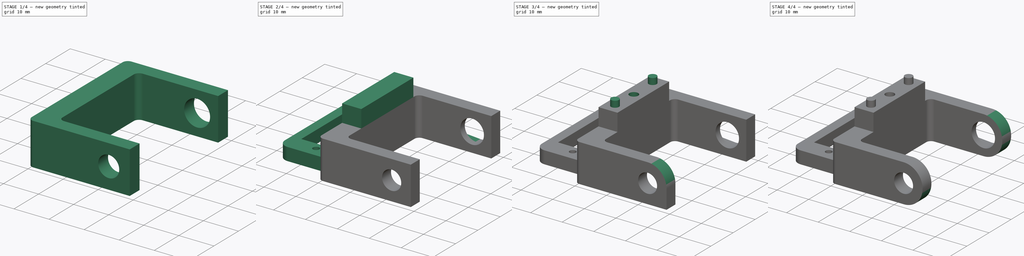
[diagram: build sequence overview — one tinted view per stage of 4, left to right]
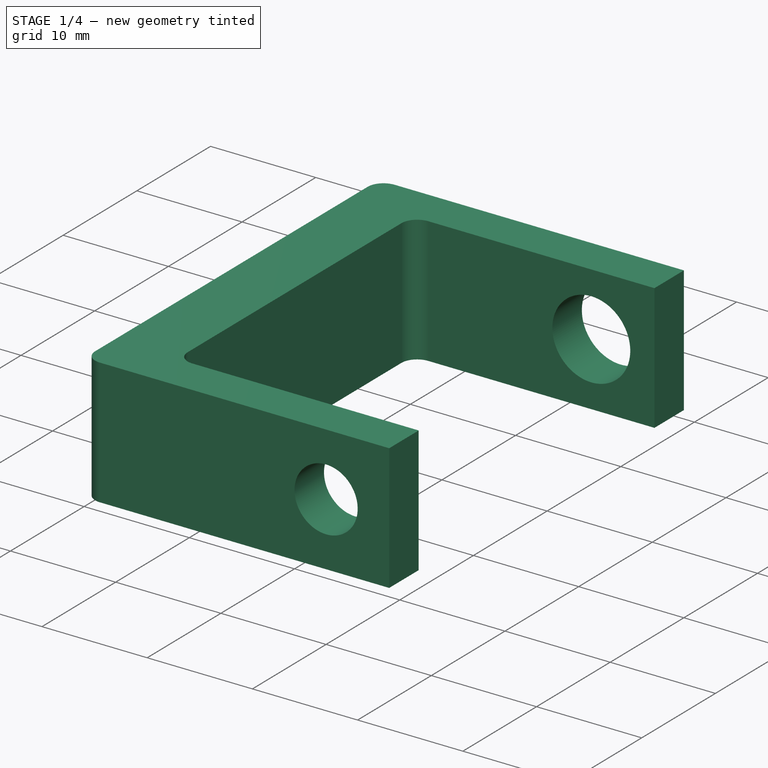
[diagram: stage 1 of 4 — iso view after this stage's code; geometry added in this stage tinted green]
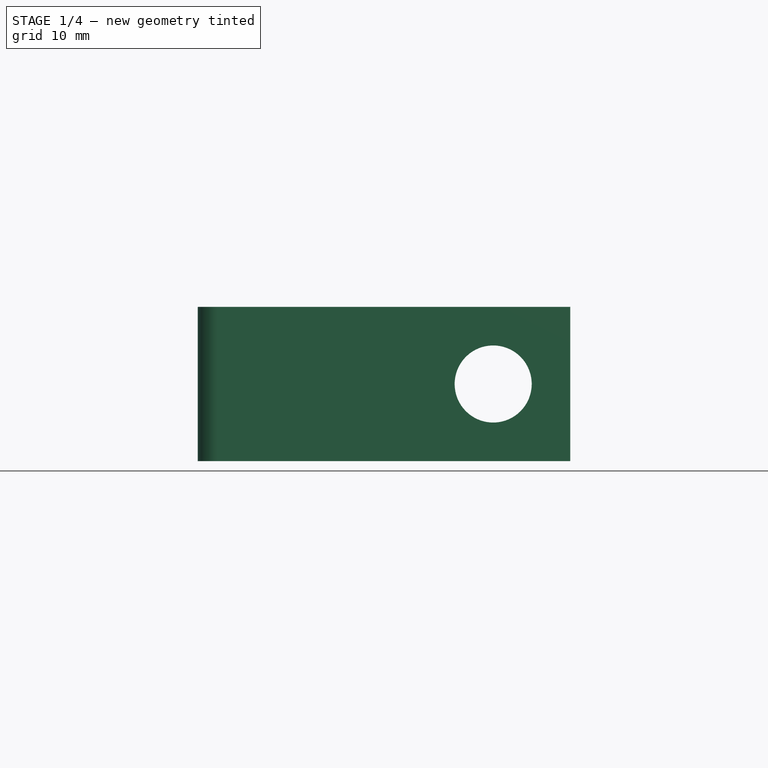
[diagram: stage 1 of 4 — front view after this stage's code; geometry added in this stage tinted green]
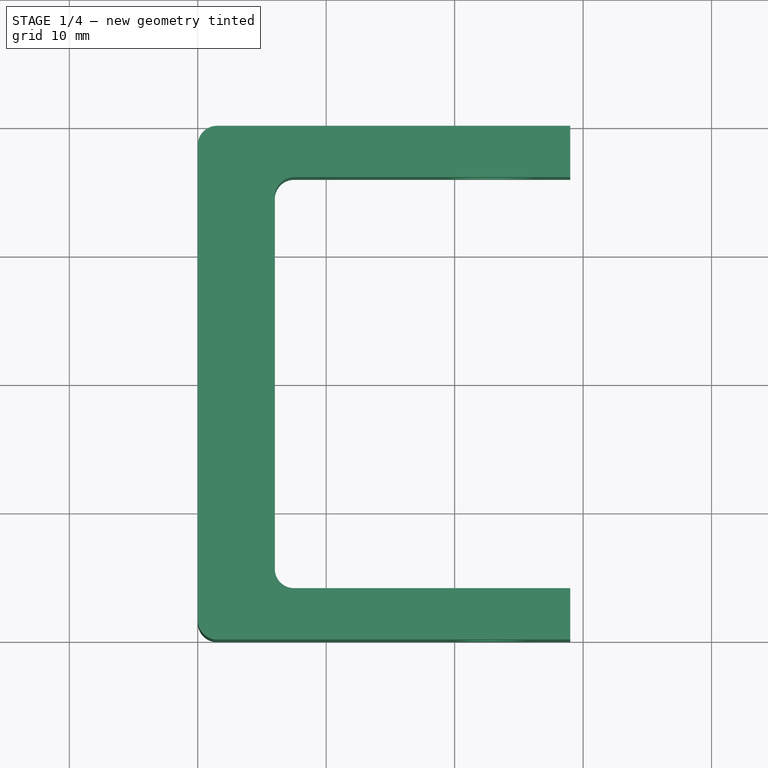
[diagram: stage 1 of 4 — top view after this stage's code; geometry added in this stage tinted green]
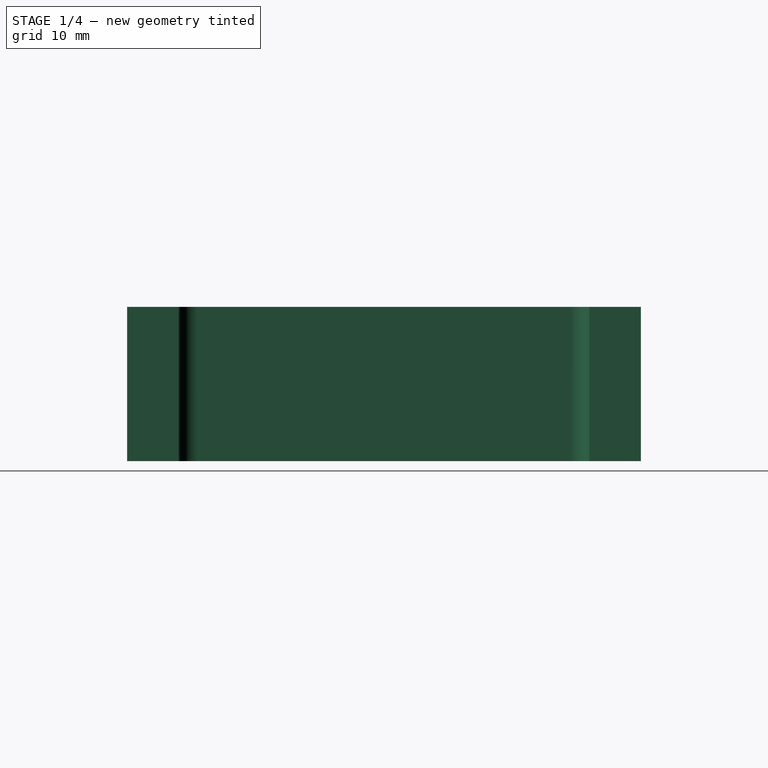
[diagram: stage 1 of 4 — right view after this stage's code; geometry added in this stage tinted green]
FCSTD DOCUMENT  (FreeCAD 0.21R33771 (Git))
Label: хълбок ляв
License: All rights reserved
LicenseURL: https://en.wikipedia.org/wiki/All_rights_reserved
objects: Sketcher::SketchObject×8, PartDesign::Pad×4, PartDesign::Pocket×4, PartDesign::Fillet×4, PartDesign::Body×1
note: 33 computed .brp shape members not serialized (recipe doc carries the construction recipe); baked Part::Feature solids carry a one-line shape summary decoded from their .brp

FEATURE [Sketcher::SketchObject] Sketch  label="скоба"
  FullyConstrained = true
  MapMode = 5
  Support = -> [XY_Plane]
  sketch-geometry (12):
    g0: LineSegment StartX=29 StartY=20 StartZ=0 EndX=1.5 EndY=20 EndZ=0
    g1: LineSegment StartX=5.82e-14 StartY=18.5 StartZ=0 EndX=5.82e-14 EndY=-18.5 EndZ=0
    g2: LineSegment StartX=1.5 StartY=-20 StartZ=0 EndX=29 EndY=-20 EndZ=0
    g3: LineSegment StartX=29 StartY=-20 StartZ=0 EndX=29 EndY=-16 EndZ=0
    g4: LineSegment StartX=29 StartY=-16 StartZ=0 EndX=7.5 EndY=-16 EndZ=0
    g5: LineSegment StartX=6 StartY=-14.5 StartZ=0 EndX=6 EndY=14.5 EndZ=0
    g6: LineSegment StartX=7.5 StartY=16 StartZ=0 EndX=29 EndY=16 EndZ=0
    g7: LineSegment StartX=29 StartY=16 StartZ=0 EndX=29 EndY=20 EndZ=0
    g8: ArcOfCircle CenterX=7.5 CenterY=14.5 CenterZ=0 NormalX=0 NormalY=0 NormalZ=1 AngleXU=0 Radius=1.5 StartAngle=1.5708 EndAngle=3.14159
    g9: ArcOfCircle CenterX=1.5 CenterY=18.5 CenterZ=0 NormalX=0 NormalY=0 NormalZ=1 AngleXU=0 Radius=1.5 StartAngle=1.5708 EndAngle=3.14159
    g10: ArcOfCircle CenterX=7.5 CenterY=-14.5 CenterZ=0 NormalX=0 NormalY=0 NormalZ=1 AngleXU=0 Radius=1.5 StartAngle=3.14159 EndAngle=4.71239
    g11: ArcOfCircle CenterX=1.5 CenterY=-18.5 CenterZ=0 NormalX=0 NormalY=0 NormalZ=1 AngleXU=0 Radius=1.5 StartAngle=3.14159 EndAngle=4.71239
  constraints (32):
    c: Horizontal(g0)
    c: Horizontal(g2)
    c: Coincident(g2,g3)
    c: Vertical(g3)
    c: Coincident(g3,g4)
    c: Horizontal(g4)
    c: Vertical(g5)
    c: Horizontal(g6)
    c: Coincident(g6,g7)
    c: Coincident(g7,g0)
    c: Vertical(g7)
    c: Equal(g7,g3)
    c: DistanceY(g7,g7) = 4
    c: Tangent(g5,g8) = 1.5708
    c: Tangent(g6,g8) = 1.5708
    c: Tangent(g0,g9) = -1.5708
    c: Tangent(g1,g9) = -1.5708
    c: Tangent(g4,g10) = 1.5708
    c: Tangent(g5,g10) = 1.5708
    c: Tangent(g2,g11) = -1.5708
    c: Tangent(g1,g11) = -1.5708
    c: Equal(g9,g8)
    c: Equal(g8,g10)
    c: Equal(g10,g11)
    c: Diameter(g10) = 3
    c: Vertical(g1)
    c: DistanceX(g1,g5) = 6
    c: PointOnObject(g1,g-2)
    c: DistanceX(g-1,g2) = 29
    c: DistanceX(g-1,g0) = 29
    c: DistanceY(g3,g-1) = 16
    c: DistanceY(g-1,g6) = 16
FEATURE [PartDesign::Pad] Pad  label="скоба001"
  Direction = (0,0,1)
  Length = 12
  Length2 = 10
  Profile = -> Sketch
  ReferenceAxis = -> Sketch [N_Axis]
  Type = 0
FEATURE [Sketcher::SketchObject] Sketch001  label="Малък отвор - чертеж"
  FullyConstrained = true
  MapMode = 5
  Placement = pos=(0,-20,0) rot=(1,0,0;1.5708rad)
  Support = -> [Pad]
  sketch-geometry (1):
    g0: Circle CenterX=23 CenterY=6 CenterZ=0 NormalX=0 NormalY=0 NormalZ=1 AngleXU=0 Radius=3
  constraints (3):
    c: DistanceY(g-1,g0) = 6
    c: DistanceX(g-1,g0) = 23
    c: Diameter(g0) = 6
FEATURE [PartDesign::Pocket] Pocket  label="Малък отвор"
  BaseFeature = -> Pad
  Direction = (0,1,-2e-16)
  Length = 5
  Length2 = 5
  Profile = -> Sketch001
  ReferenceAxis = -> Sketch001 [N_Axis]
  Type = 0
FEATURE [Sketcher::SketchObject] Sketch002  label="Голям отвор - чертеж"
  FullyConstrained = true
  MapMode = 5
  Placement = pos=(0,20,0) rot=(0,0.707107,0.707107;3.14159rad)
  Support = -> [Pocket]
  sketch-geometry (1):
    g0: Circle CenterX=-23 CenterY=6 CenterZ=0 NormalX=0 NormalY=0 NormalZ=1 AngleXU=0 Radius=3.7
  constraints (3):
    c: Diameter(g0) = 7.4
    c: DistanceX(g0,g-1) = 23
    c: DistanceY(g-1,g0) = 6
FEATURE [PartDesign::Pocket] Pocket001  label="Голям отвор"
  BaseFeature = -> Pocket
  Direction = (0,-1,2e-16)
  Length = 5
  Length2 = 5
  Profile = -> Sketch002
  ReferenceAxis = -> Sketch002 [N_Axis]
  Type = 0
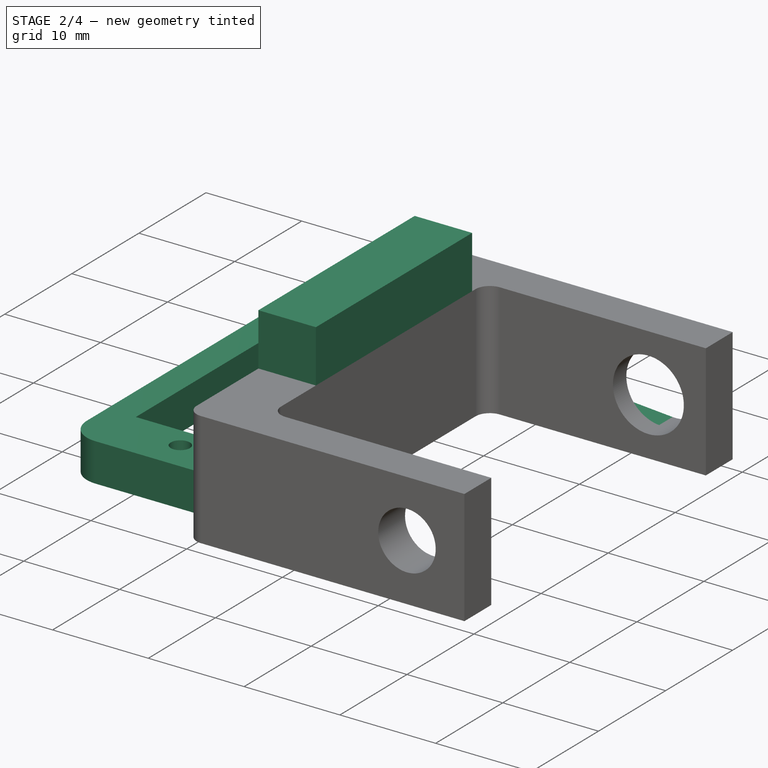
[diagram: stage 2 of 4 — iso view after this stage's code; geometry added in this stage tinted green]
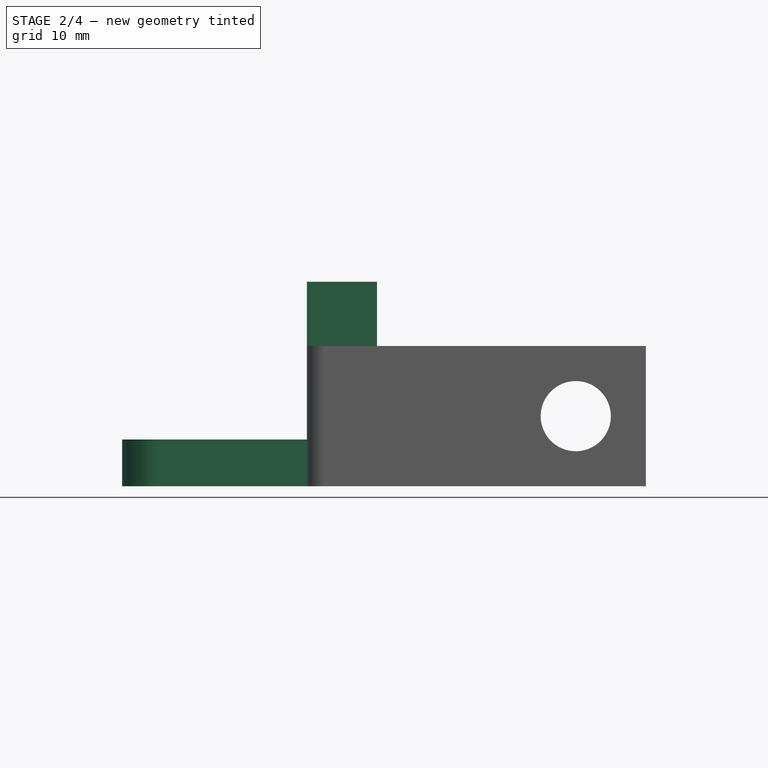
[diagram: stage 2 of 4 — front view after this stage's code; geometry added in this stage tinted green]
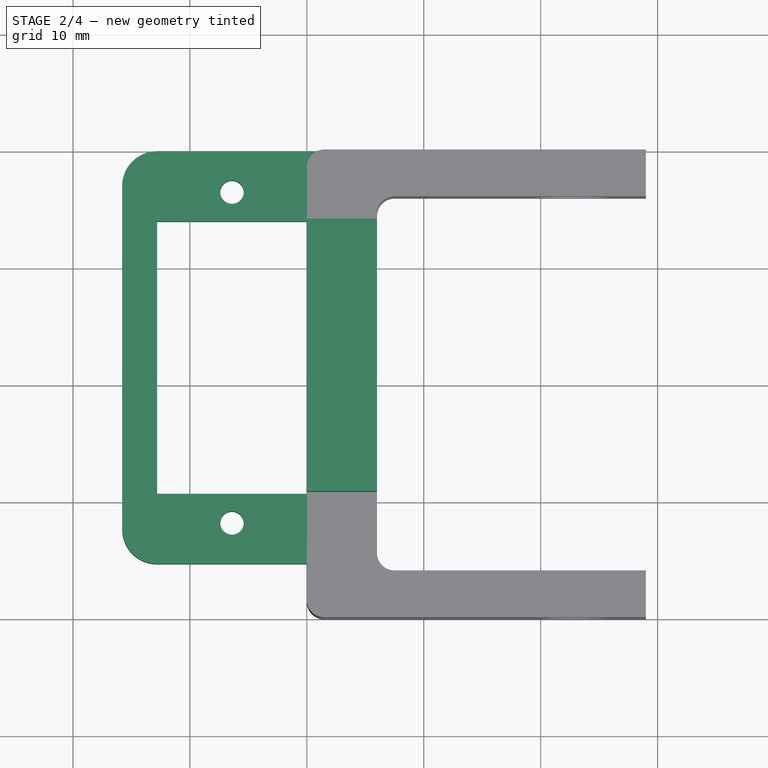
[diagram: stage 2 of 4 — top view after this stage's code; geometry added in this stage tinted green]
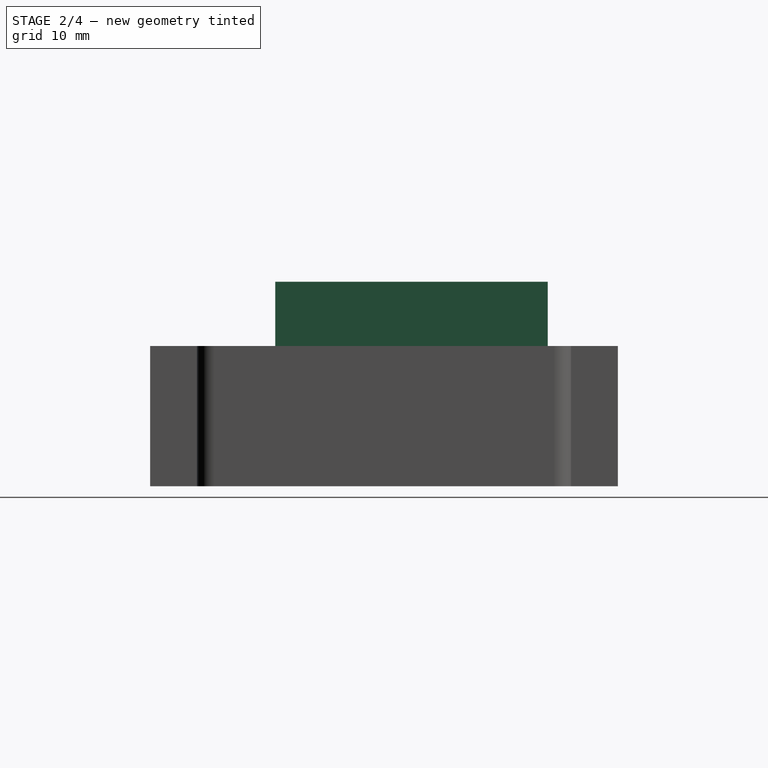
[diagram: stage 2 of 4 — right view after this stage's code; geometry added in this stage tinted green]
FEATURE [Sketcher::SketchObject] Sketch003  label="Легло за рамо на сервото - чертеж"
  FullyConstrained = true
  MapMode = 5
  Placement = pos=(0,20,0) rot=(0,0.707107,0.707107;3.14159rad)
  Support = -> [Pocket001]
  sketch-geometry (4):
    g0: ArcOfCircle CenterX=-23 CenterY=6 CenterZ=0 NormalX=0 NormalY=0 NormalZ=1 AngleXU=0 Radius=3.7 StartAngle=1.49556 EndAngle=4.78762
    g1: ArcOfCircle CenterX=-7.7 CenterY=6 CenterZ=0 NormalX=0 NormalY=0 NormalZ=1 AngleXU=0 Radius=2.55 StartAngle=4.78762 EndAngle=7.77875
    g2: LineSegment StartX=-22.7219 StartY=2.31047 StartZ=0 EndX=-7.50833 EndY=3.45721 EndZ=0
    g3: LineSegment StartX=-7.50833 StartY=8.54279 StartZ=0 EndX=-22.7219 EndY=9.68953 EndZ=0
  constraints (10):
    c: Tangent(g0,g2) = -1.5708
    c: Tangent(g2,g1) = -1.5708
    c: Tangent(g1,g3) = -1.5708
    c: Tangent(g3,g0) = -1.5708
    c: Diameter(g0) = 7.4
    c: DistanceY(g-1,g0) = 6
    c: DistanceY(g-1,g1) = 6
    c: DistanceX(g0,g-1) = 23
    c: Diameter(g1) = 5.1
    c: DistanceX(g0,g1) = 15.3
FEATURE [PartDesign::Pocket] Pocket002  label="Легло за рамо на сервото"
  BaseFeature = -> Pocket001
  Direction = (0,-1,2e-16)
  Length = 2
  Length2 = 5
  Profile = -> Sketch003
  ReferenceAxis = -> Sketch003 [N_Axis]
  Type = 0
FEATURE [Sketcher::SketchObject] Sketch004  label="Основа серво -  чертеж"
  FullyConstrained = true
  MapMode = 5
  Placement = pos=(0,0,0) rot=(1,0,0;3.14159rad)
  Support = -> [Pocket002]
  sketch-geometry (12):
    g0: LineSegment StartX=6 StartY=15.3 StartZ=0 EndX=-12.8 EndY=15.3 EndZ=0
    g1: LineSegment StartX=-15.8 StartY=12.3 StartZ=0 EndX=-15.8 EndY=-17 EndZ=0
    g2: LineSegment StartX=-12.8 StartY=-20 StartZ=0 EndX=6 EndY=-20 EndZ=0
    g3: LineSegment StartX=6 StartY=-20 StartZ=0 EndX=6 EndY=15.3 EndZ=0
    g4: LineSegment StartX=0 StartY=9.3 StartZ=0 EndX=-12.8 EndY=9.3 EndZ=0
    g5: LineSegment StartX=-12.8 StartY=9.3 StartZ=0 EndX=-12.8 EndY=-14 EndZ=0
    g6: LineSegment StartX=-12.8 StartY=-14 StartZ=0 EndX=0 EndY=-14 EndZ=0
    g7: LineSegment StartX=0 StartY=-14 StartZ=0 EndX=0 EndY=9.3 EndZ=0
    g8: ArcOfCircle CenterX=-12.8 CenterY=-17 CenterZ=0 NormalX=0 NormalY=0 NormalZ=1 AngleXU=0 Radius=3 StartAngle=3.14159 EndAngle=4.71239
    g9: ArcOfCircle CenterX=-12.8 CenterY=12.3 CenterZ=0 NormalX=0 NormalY=0 NormalZ=1 AngleXU=0 Radius=3 StartAngle=1.5708 EndAngle=3.14159
    g10: Circle CenterX=-6.4 CenterY=11.8 CenterZ=0 NormalX=0 NormalY=0 NormalZ=1 AngleXU=0 Radius=1
    g11: Circle CenterX=-6.4 CenterY=-16.5 CenterZ=0 NormalX=0 NormalY=0 NormalZ=1 AngleXU=0 Radius=1
  constraints (34):
    c: Horizontal(g0)
    c: Horizontal(g2)
    c: Vertical(g1)
    c: Vertical(g3)
    c: Coincident(g4,g5)
    c: Coincident(g5,g6)
    c: Coincident(g6,g7)
    c: Horizontal(g4)
    c: Horizontal(g6)
    c: Vertical(g5)
    c: Vertical(g7)
    c: DistanceY(g5,g4) = 23.3
    c: DistanceX(g6,g6) = 12.8
    c: Tangent(g2,g8) = -1.5708
    c: Tangent(g1,g8) = -1.5708
    c: Tangent(g0,g9) = -1.5708
    c: Tangent(g1,g9) = -1.5708
    c: PointOnObject(g4,g-2)
    c: Coincident(g3,g0)
    c: DistanceX(g-1,g0) = 6
    c: DistanceY(g4,g0) = 6
    c: DistanceY(g2,g5) = 6
    c: DistanceX(g1,g5) = 3
    c: Coincident(g4,g7)
    c: Radius(g8) = 3
    c: Radius(g9) = 3
    c: Coincident(g3,g2)
    c: Equal(g10,g11)
    c: DistanceY(g4,g10) = 2.5
    c: DistanceY(g11,g5) = 2.5
    c: DistanceX(g5,g11) = 6.4
    c: DistanceX(g4,g10) = 6.4
    c: Diameter(g10) = 2
    c: DistanceY(g2,g-1) = 20
FEATURE [PartDesign::Pad] Pad001  label="Основа серво"
  BaseFeature = -> Pocket002
  Direction = (0,0,-1)
  Length = 4
  Length2 = 10
  Profile = -> Sketch004
  ReferenceAxis = -> Sketch004 [N_Axis]
  Reversed = true
  Type = 0
FEATURE [Sketcher::SketchObject] Sketch005  label="Колона чертеж"
  FullyConstrained = true
  MapMode = 5
  Placement = pos=(0,0,4) rot=(0,0,1;0rad)
  Support = -> [Pad001]
  sketch-geometry (4):
    g0: LineSegment StartX=0 StartY=14 StartZ=0 EndX=6 EndY=14 EndZ=0
    g1: LineSegment StartX=6 StartY=14 StartZ=0 EndX=6 EndY=-9.3 EndZ=0
    g2: LineSegment StartX=6 StartY=-9.3 StartZ=0 EndX=0 EndY=-9.3 EndZ=0
    g3: LineSegment StartX=0 StartY=-9.3 StartZ=0 EndX=0 EndY=14 EndZ=0
  constraints (12):
    c: Coincident(g0,g1)
    c: Coincident(g1,g2)
    c: Coincident(g2,g3)
    c: Coincident(g3,g0)
    c: Horizontal(g0)
    c: Horizontal(g2)
    c: Vertical(g1)
    c: Vertical(g3)
    c: PointOnObject(g0,g-2)
    c: DistanceX(g0,g0) = 6
    c: DistanceY(g1,g1) = 23.3
    c: DistanceY(g-1,g0) = 14
FEATURE [PartDesign::Pad] Pad002  label="Колонка"
  BaseFeature = -> Pad001
  Direction = (0,0,1)
  Length = 13.5
  Length2 = 10
  Profile = -> Sketch005
  ReferenceAxis = -> Sketch005 [N_Axis]
  Type = 0
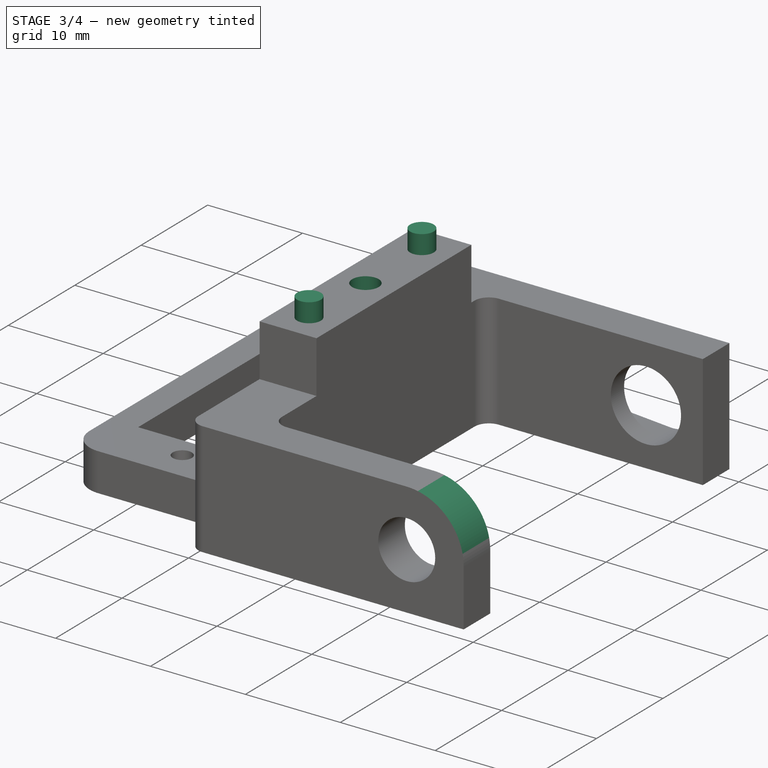
[diagram: stage 3 of 4 — iso view after this stage's code; geometry added in this stage tinted green]
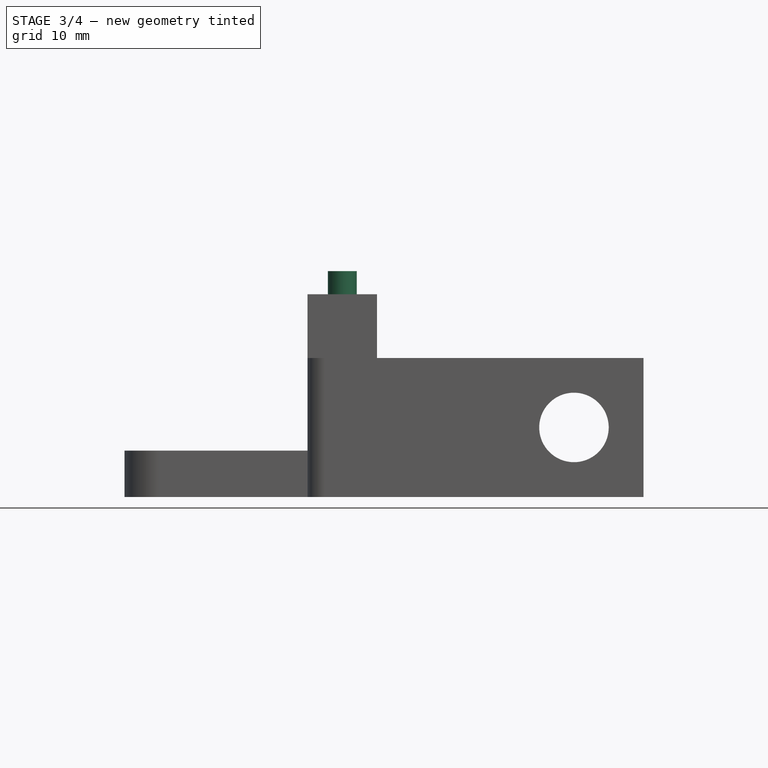
[diagram: stage 3 of 4 — front view after this stage's code; geometry added in this stage tinted green]
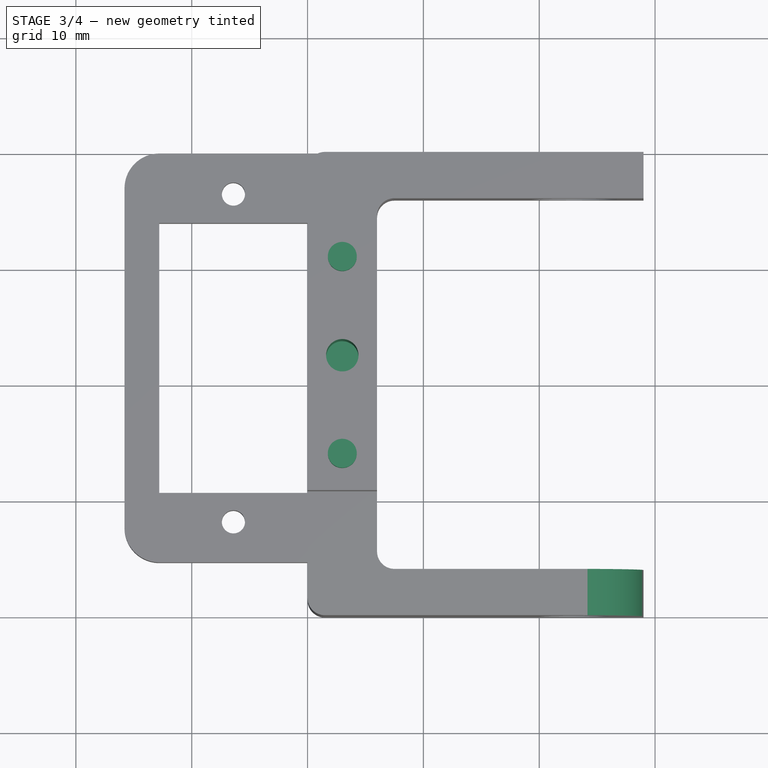
[diagram: stage 3 of 4 — top view after this stage's code; geometry added in this stage tinted green]
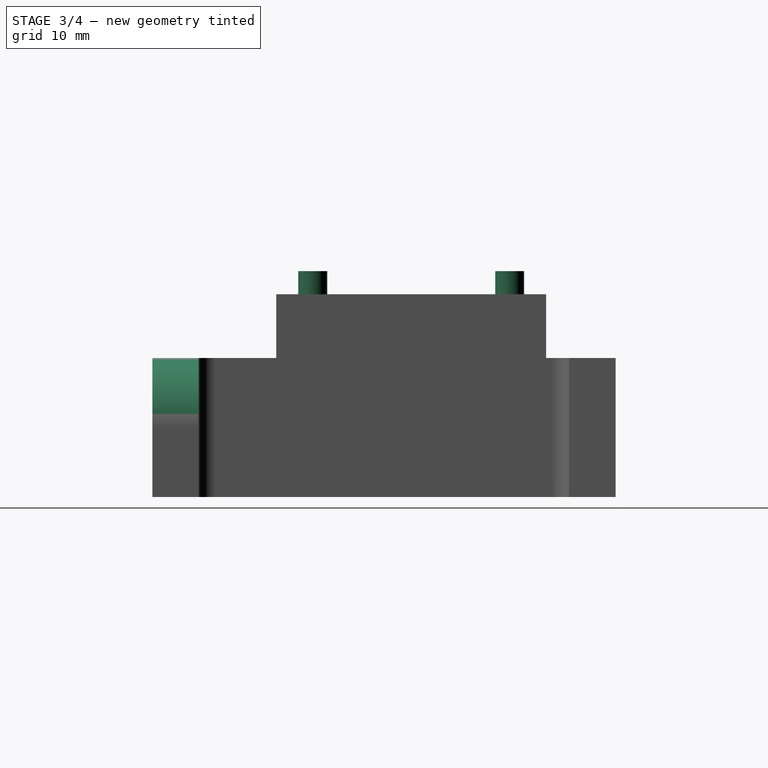
[diagram: stage 3 of 4 — right view after this stage's code; geometry added in this stage tinted green]
FEATURE [Sketcher::SketchObject] Sketch006  label="Щифтове чертеж"
  FullyConstrained = true
  MapMode = 5
  Placement = pos=(0,0,17.5) rot=(0,0,1;0rad)
  Support = -> [Pad002]
  sketch-geometry (2):
    g0: Circle CenterX=3 CenterY=10.85 CenterZ=0 NormalX=0 NormalY=0 NormalZ=1 AngleXU=0 Radius=1.25
    g1: Circle CenterX=3 CenterY=-6.15 CenterZ=0 NormalX=0 NormalY=0 NormalZ=1 AngleXU=0 Radius=1.25
  constraints (6):
    c: DistanceX(g-1,g0) = 3
    c: DistanceX(g-1,g1) = 3
    c: Diameter(g1) = 2.5
    c: Diameter(g0) = 2.5
    c: DistanceY(g-1,g0) = 10.85
    c: DistanceY(g1,g0) = 17
FEATURE [PartDesign::Pad] Pad003  label="Щифтове"
  BaseFeature = -> Pad002
  Direction = (0,0,1)
  Length = 2
  Length2 = 10
  Profile = -> Sketch006
  ReferenceAxis = -> Sketch006 [N_Axis]
  Type = 0
FEATURE [Sketcher::SketchObject] Sketch007
  FullyConstrained = true
  MapMode = 5
  Placement = pos=(0,0,17.5) rot=(0,0,1;0rad)
  Support = -> [Pad003]
  sketch-geometry (1):
    g0: Circle CenterX=3 CenterY=2.35 CenterZ=0 NormalX=0 NormalY=0 NormalZ=1 AngleXU=0 Radius=1.4
  constraints (3):
    c: DistanceX(g-1,g0) = 3
    c: Diameter(g0) = 2.8
    c: DistanceY(g-1,g0) = 2.35
FEATURE [PartDesign::Pocket] Pocket003  label="Отвор"
  BaseFeature = -> Pad003
  Direction = (0,0,-1)
  Length = 11
  Length2 = 5
  Profile = -> Sketch007
  ReferenceAxis = -> Sketch007 [N_Axis]
  Type = 0
FEATURE [PartDesign::Fillet] Fillet
  Base = -> Pocket003 [Edge106]
  BaseFeature = -> Pocket003
  Radius = 6
  SupportTransform = false
  UseAllEdges = false
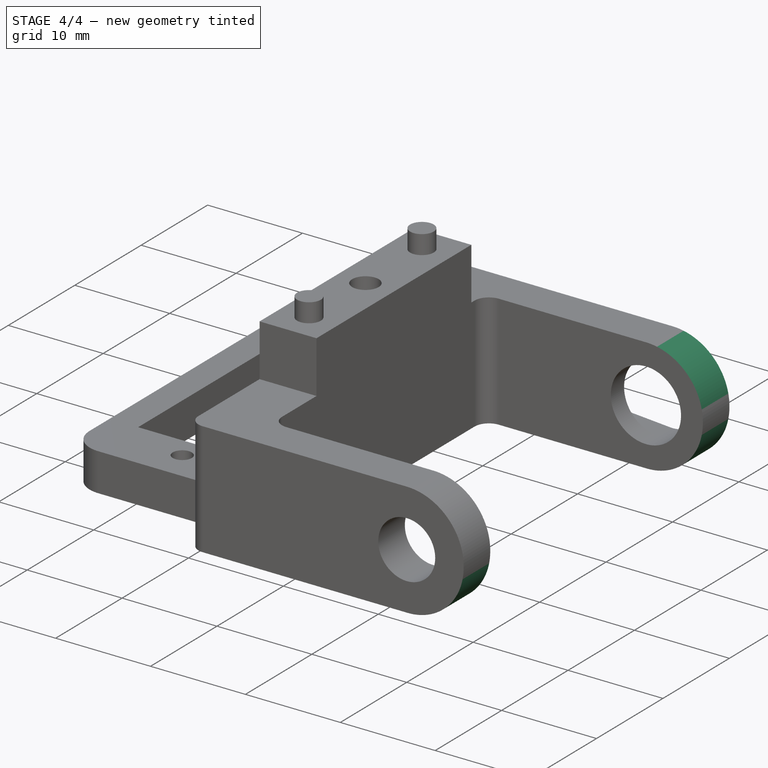
[diagram: stage 4 of 4 — iso view after this stage's code; geometry added in this stage tinted green]
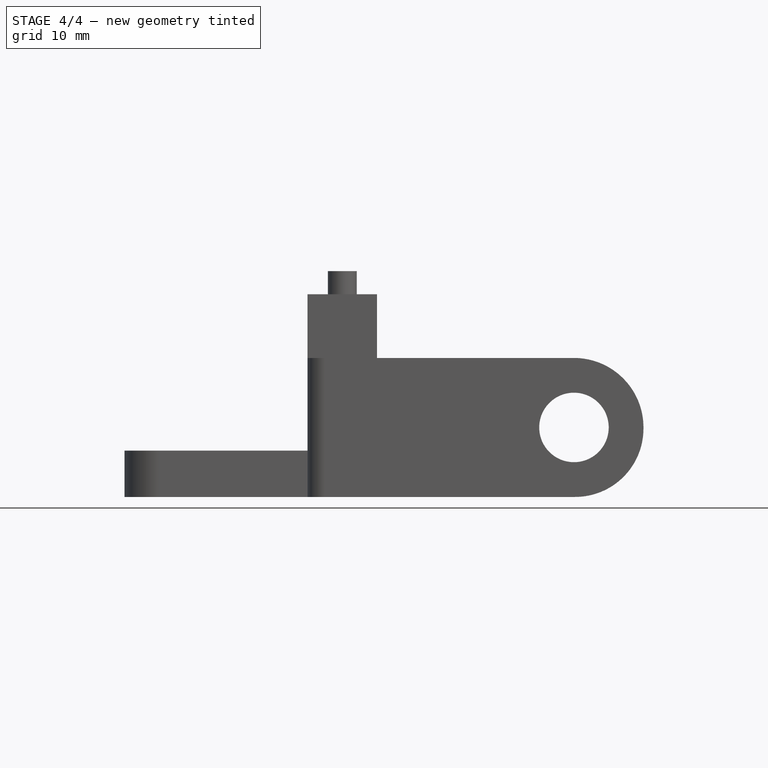
[diagram: stage 4 of 4 — front view after this stage's code; geometry added in this stage tinted green]
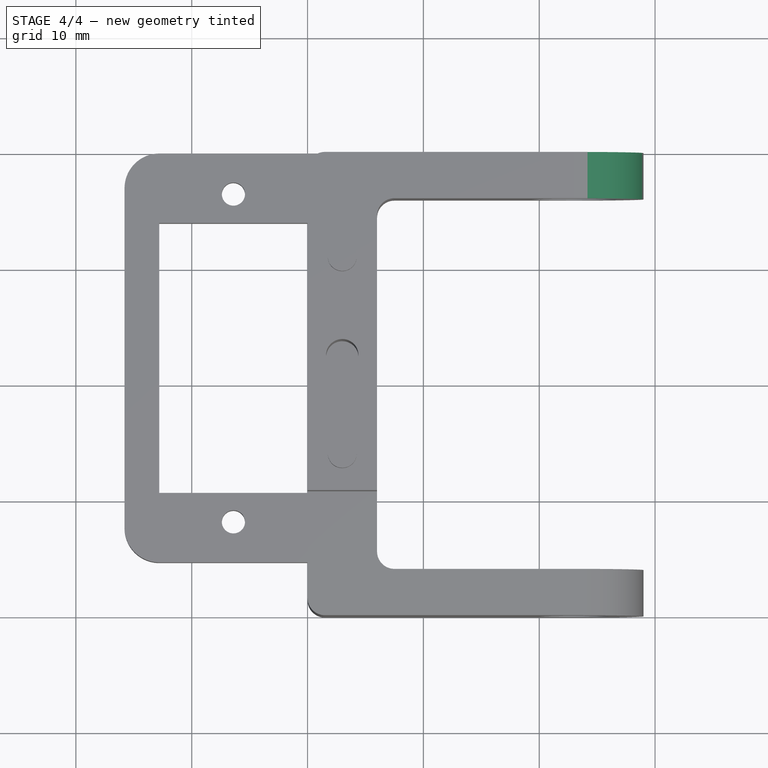
[diagram: stage 4 of 4 — top view after this stage's code; geometry added in this stage tinted green]
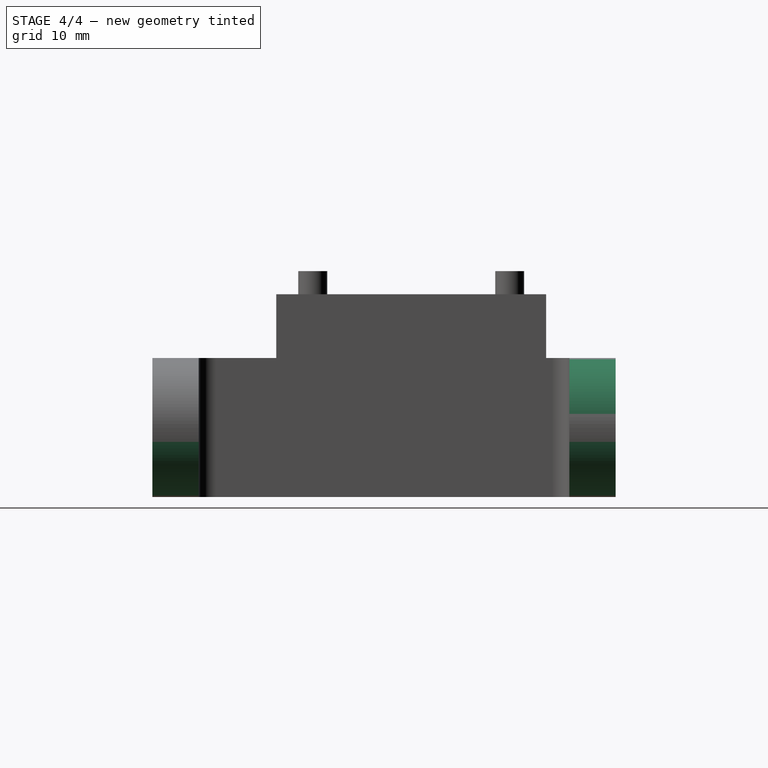
[diagram: stage 4 of 4 — right view after this stage's code; geometry added in this stage tinted green]
FEATURE [PartDesign::Fillet] Fillet001
  Base = -> Fillet [Edge119]
  BaseFeature = -> Fillet
  Radius = 6
  SupportTransform = false
  UseAllEdges = false
FEATURE [PartDesign::Fillet] Fillet002
  Base = -> Fillet001 [Edge92]
  BaseFeature = -> Fillet001
  Radius = 5.9
  SupportTransform = false
  UseAllEdges = false
FEATURE [PartDesign::Fillet] Fillet003
  Base = -> Fillet002 [Edge66]
  BaseFeature = -> Fillet002
  Radius = 5.9
  SupportTransform = false
  UseAllEdges = false
FEATURE [PartDesign::Body] Body
  Group = -> [Sketch,Pad,Sketch001,Pocket,Sketch002,Pocket001,Sketch003,Pocket002,Sketch004,Pad001,Sketch005,Pad002,Sketch006,Pad003,Sketch007,Pocket003,Fillet,Fillet001,Fillet002,Fillet003]
  Origin = -> Origin
  Tip = -> Fillet003
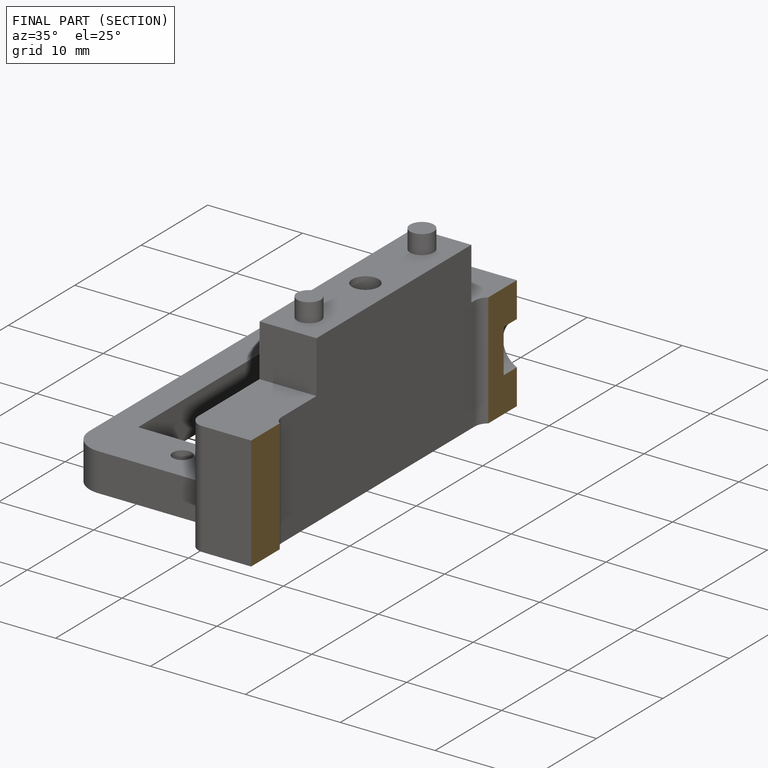
[diagram: finished part — half-section view (interior)]
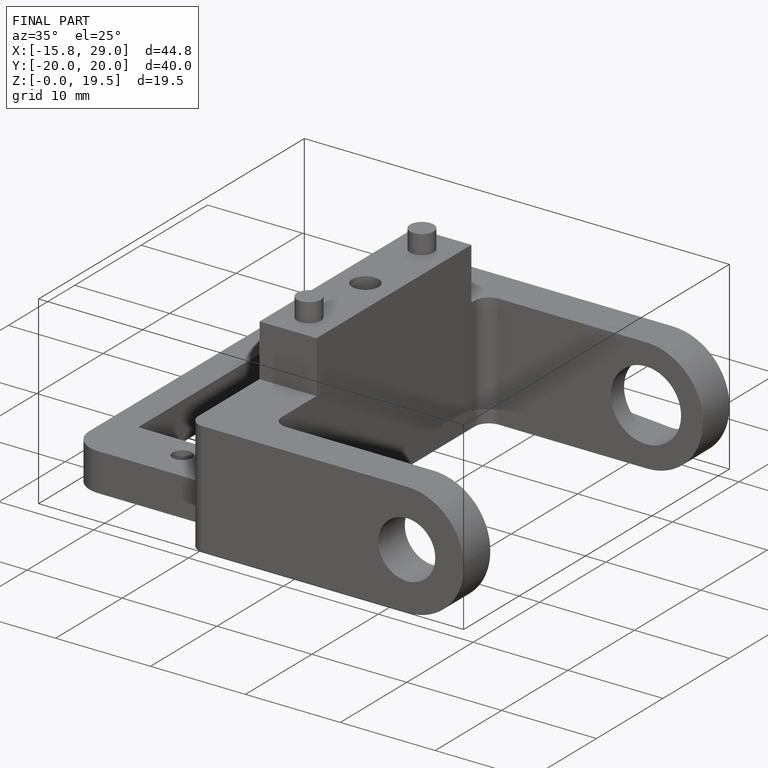
[diagram: finished part — iso view with bounding-box wireframe]
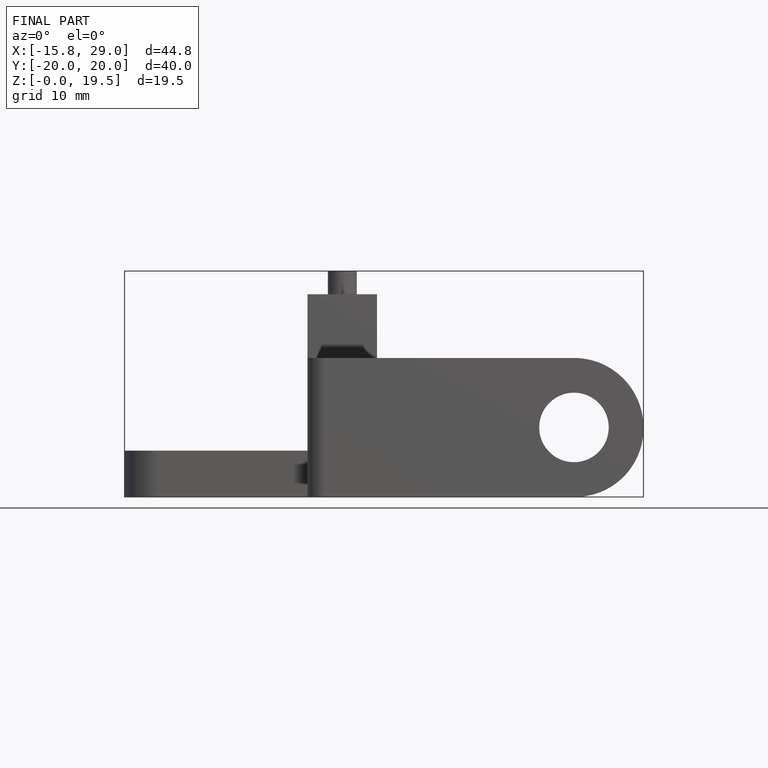
[diagram: finished part — front view with bounding-box wireframe]
